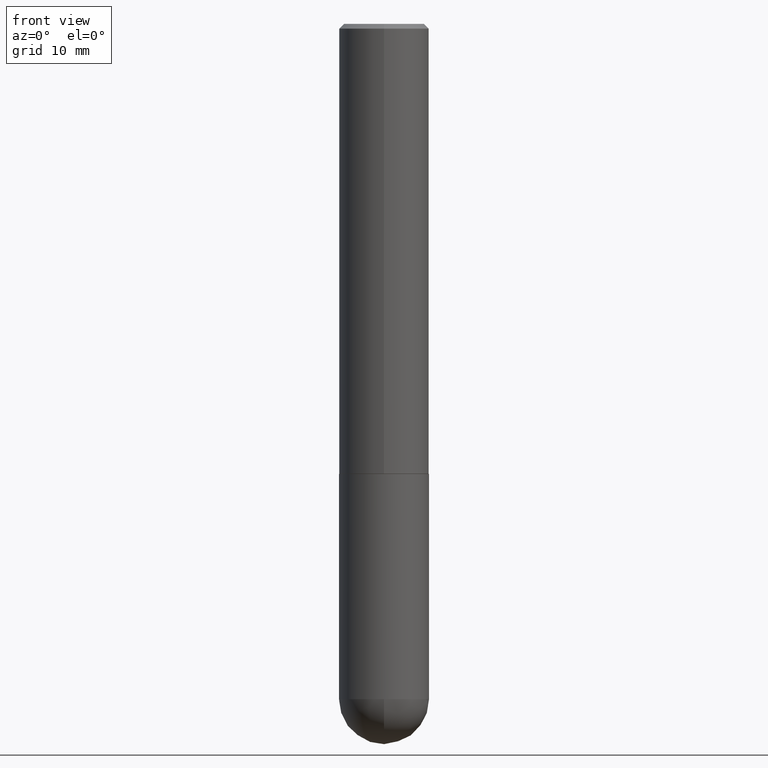
[diagram: clean part render]
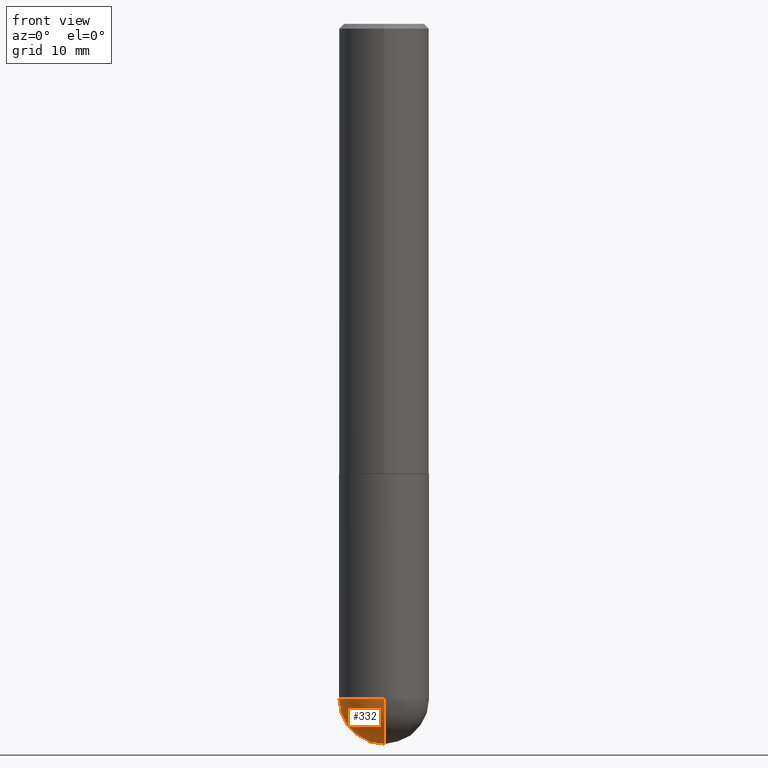
[diagram: same view with one face highlighted and labeled with its STEP entity id]
A machine part, front view. The second image highlights one B-rep face of the part: STEP entity #332.
In plain terms, the highlighted spherical surface has radius 4.7625 mm.
Its self-contained STEP definition (entity closure, byte-faithful):
#2 = DIRECTION ( 'NONE',  ( 1.000000000000000000, -6.982962677686270655E-15, 0.000000000000000000 ) ) ;
#4 = ORIENTED_EDGE ( 'NONE', *, *, #354, .T. ) ;
#24 = CARTESIAN_POINT ( 'NONE',  ( -1.332267629550121781E-15, -0.1875000000000102141, -2.812499999999999556 ) ) ;
#31 = AXIS2_PLACEMENT_3D ( 'NONE', #280, #100, #2 ) ;
#39 = EDGE_CURVE ( 'NONE', #127, #344, #356, .T. ) ;
#49 = SPHERICAL_SURFACE ( 'NONE', #373, 0.1875000000000003331 ) ;
#51 = DIRECTION ( 'NONE',  ( -7.105427357600999492E-15, -1.000000000000000000, 0.000000000000000000 ) ) ;
#71 = VERTEX_POINT ( 'NONE', #311 ) ;
#72 = FACE_OUTER_BOUND ( 'NONE', #289, .T. ) ;
#100 = DIRECTION ( 'NONE',  ( -2.445468806185136597E-29, 3.491481338843145583E-15, 1.000000000000000000 ) ) ;
#108 = DIRECTION ( 'NONE',  ( -2.445468806185136597E-29, 3.491481338843145583E-15, 1.000000000000000000 ) ) ;
#114 = CARTESIAN_POINT ( 'NONE',  ( 6.546761239481810431E-29, -1.029397363363639678E-14, -2.812500000000000000 ) ) ;
#116 = CARTESIAN_POINT ( 'NONE',  ( -0.1875000000000000555, -6.850891758363436324E-15, -2.812500000000000000 ) ) ;
#117 = EDGE_CURVE ( 'NONE', #71, #186, #363, .T. ) ;
#118 = DIRECTION ( 'NONE',  ( 6.982962677686266711E-15, 1.000000000000000000, -2.913971193241875639E-15 ) ) ;
#119 = ORIENTED_EDGE ( 'NONE', *, *, #240, .F. ) ;
#122 = AXIS2_PLACEMENT_3D ( 'NONE', #177, #402, #51 ) ;
#127 = VERTEX_POINT ( 'NONE', #116 ) ;
#177 = CARTESIAN_POINT ( 'NONE',  ( 6.546761239481810431E-29, -1.029397363363639678E-14, -2.812500000000000000 ) ) ;
#186 = VERTEX_POINT ( 'NONE', #305 ) ;
#198 = ORIENTED_EDGE ( 'NONE', *, *, #117, .F. ) ;
#217 = AXIS2_PLACEMENT_3D ( 'NONE', #258, #108, #324 ) ;
#237 = CIRCLE ( 'NONE', #217, 0.1875000000000000555 ) ;
#239 = DIRECTION ( 'NONE',  ( 1.000000000000000000, -6.982962677686265922E-15, 4.883557194083112340E-29 ) ) ;
#240 = EDGE_CURVE ( 'NONE', #186, #127, #237, .T. ) ;
#241 = CARTESIAN_POINT ( 'NONE',  ( 6.546761239481810431E-29, -1.029397363363639678E-14, -2.812500000000000000 ) ) ;
#246 = CIRCLE ( 'NONE', #122, 0.1875000000000003331 ) ;
#258 = CARTESIAN_POINT ( 'NONE',  ( 6.877881017395696678E-29, -9.819791265496348060E-15, -2.812500000000000000 ) ) ;
#275 = DIRECTION ( 'NONE',  ( 6.982962677686265922E-15, 1.000000000000000000, 0.000000000000000000 ) ) ;
#280 = CARTESIAN_POINT ( 'NONE',  ( 6.877881017395696678E-29, -9.819791265496348060E-15, -2.812500000000000000 ) ) ;
#289 = EDGE_LOOP ( 'NONE', ( #198, #4, #376, #119 ) ) ;
#305 = CARTESIAN_POINT ( 'NONE',  ( 1.309305502066243245E-15, 0.1874999999999901468, -2.812500000000000444 ) ) ;
#311 = CARTESIAN_POINT ( 'NONE',  ( 7.013303824602581502E-29, -1.093714532092748102E-14, -3.000000000000000444 ) ) ;
#324 = DIRECTION ( 'NONE',  ( 1.000000000000000000, -6.982962677686270655E-15, 0.000000000000000000 ) ) ;
#332 = ADVANCED_FACE ( 'NONE', ( #72 ), #49, .T. ) ;
#344 = VERTEX_POINT ( 'NONE', #24 ) ;
#354 = EDGE_CURVE ( 'NONE', #71, #344, #246, .T. ) ;
#356 = CIRCLE ( 'NONE', #31, 0.1875000000000000555 ) ;
#363 = CIRCLE ( 'NONE', #377, 0.1875000000000003331 ) ;
#373 = AXIS2_PLACEMENT_3D ( 'NONE', #241, #399, #118 ) ;
#376 = ORIENTED_EDGE ( 'NONE', *, *, #39, .F. ) ;
#377 = AXIS2_PLACEMENT_3D ( 'NONE', #114, #239, #275 ) ;
#399 = DIRECTION ( 'NONE',  ( -1.000000000000000000, 6.982962677686266711E-15, -4.883557194083113462E-29 ) ) ;
#402 = DIRECTION ( 'NONE',  ( -1.000000000000000000, 7.105427357601001070E-15, -4.926315508542082329E-29 ) ) ;